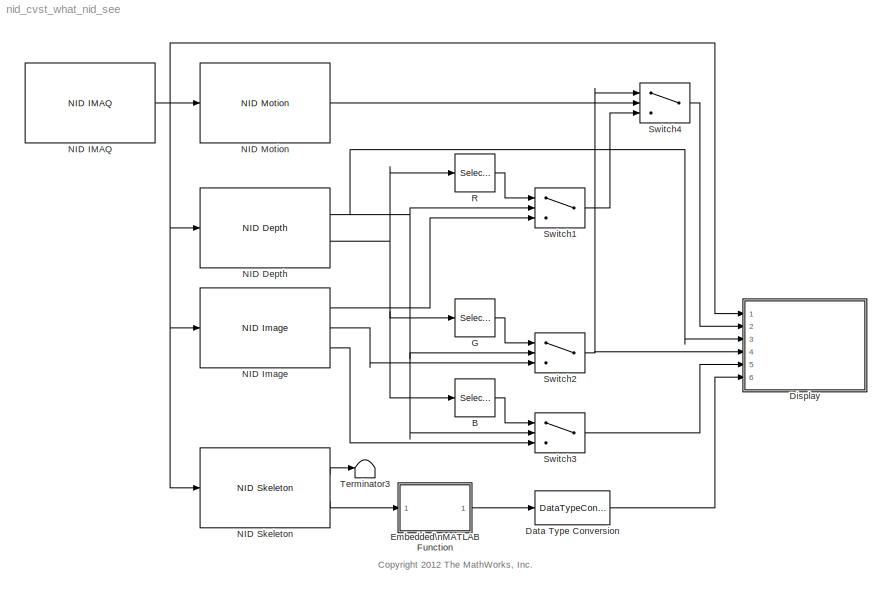
MODEL nid_cvst_what_nid_see
KIND model
BLOCK [Selector] B
  IndexOptions = Select all,Select all,Index vector (dialog)
  Indices = 1,2,3
  InputPortWidth = 3
  NumberOfDimensions = 3
  OutputSizes = 1,1,1
  Ports = [1, 1]
  SID = 141
BLOCK [DataTypeConversion] Data Type Conversion
  OutDataTypeStr = int32
  RndMeth = Floor
  SID = 149
  SaturateOnIntegerOverflow = off
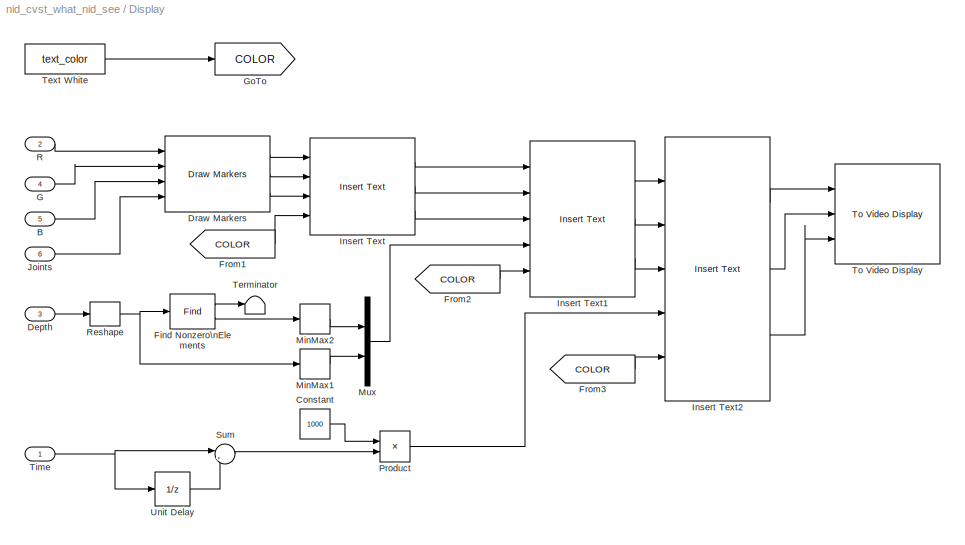
BLOCK [SubSystem] Display
  FunctionWithSeparateData = off
  MaskEnableString = on
  MaskHideContents = off
  MaskIconFrame = on
  MaskIconOpaque = on
  MaskIconRotate = none
  MaskIconUnits = autoscale
  MaskPortRotate = default
  MaskPromptString = Text Color (RGB)
  MaskStyleString = edit
  MaskToolTipString = on
  MaskTunableValueString = off
  MaskValueString = [0 0 0]
  MaskVariables = text_color=@1;
  MaskVisibilityString = on
  MinAlgLoopOccurrences = off
  Opaque = off
  Ports = [6]
  PropExecContextOutsideSubsystem = off
  RTWSystemCode = Auto
  RequestExecContextInheritance = off
  SID = 151
BLOCK [Inport] Display/B
  IconDisplay = Port number
  Port = 5
  SID = 154
BLOCK [Constant] Display/Constant
  SID = 176
  Value = 1000
BLOCK [Inport] Display/Depth
  IconDisplay = Port number
  Port = 3
  SID = 158
BLOCK [Reference] Display/Draw Markers  REF=viptextngfix/Draw Markers
  DialogController = vipDDGCreate
  DialogControllerArgs = DataTag0
  LockScale = off
  Ports = [4, 3]
  SID = 146
  SourceBlock = viptextngfix/Draw Markers
  SourceType = Draw Markers
  accumFracLength = 14
  accumMode = Same as product output
  accumWordLength = 32
  antialiasing = on
  color = [255 0 0]
  display = User-specified value
  fill = on
  fillClrSource = Specify via dialog
  imagePorts = Separate color signals
  inType = Obsolete
  intensity = 200
  memoryFracLength = 14
  memoryMode = Specify word length
  memoryWordLength = 16
  opacity = 0.5
  overflowMode = off
  prodOutputFracLength = 14
  prodOutputMode = Binary point scaling
  prodOutputWordLength = 32
  roundingMode = Floor
  shape = Circle
  size = 5
  viewport = Entire image
BLOCK [Find] Display/Find Nonzero\nElements
  IndexMode = Zero-based
  IndexOutputFormat = Linear indices
  NumberOfInputDimensions = 3
  Ports = [1, 2]
  SID = 168
  ShowOutputForNonzeroInputValues = on
BLOCK [From] Display/From1
  GotoTag = COLOR
  SID = 185
BLOCK [From] Display/From2
  GotoTag = COLOR
  SID = 186
BLOCK [From] Display/From3
  GotoTag = COLOR
  SID = 187
BLOCK [Inport] Display/G
  IconDisplay = Port number
  Port = 4
  SID = 153
BLOCK [Goto] Display/GoTo
  GotoTag = COLOR
  SID = 183
  TagVisibility = local
BLOCK [Reference] Display/Insert Text  REF=viptextngfix/Insert Text
  DialogController = vipDDGCreate
  DialogControllerArgs = DataTag1
  Ports = [4, 3]
  SID = 150
  SourceBlock = viptextngfix/Insert Text
  SourceType = Insert Text
  antiAliased = on
  blockFontSize = 16
  dummyVar1 = 0
  dummyVar2 = 0
  dummyVar3 = 0
  dummyVar4 = 0
  fontFace = Arial
  getTextColorFrom = Input port
  getTextIntensityFrom = Specify via dialog
  getTextLocFrom = Specify via dialog
  getTextOpacityFrom = Specify via dialog
  imagePorts = Separate color signals
  inputType = Obsolete
  isInputTransposed = off
  textColor = [0 0 0]
  textIntensity = 0
  textLoc = [0 0]
  textOpacity = 1.0
  theText = 'RGB camera + Depth (Green) + Motion (Yellow) + Skeleton Joints(Red)'
BLOCK [Reference] Display/Insert Text1  REF=viptextngfix/Insert Text
  DialogController = vipDDGCreate
  DialogControllerArgs = DataTag2
  Ports = [5, 3]
  SID = 170
  SourceBlock = viptextngfix/Insert Text
  SourceType = Insert Text
  antiAliased = on
  blockFontSize = 16
  dummyVar1 = 0
  dummyVar2 = 0
  dummyVar3 = 0
  dummyVar4 = 0
  fontFace = Arial
  getTextColorFrom = Input port
  getTextIntensityFrom = Specify via dialog
  getTextLocFrom = Specify via dialog
  getTextOpacityFrom = Specify via dialog
  imagePorts = Separate color signals
  inputType = Obsolete
  isInputTransposed = off
  textColor = [0 0 0]
  textIntensity = 0
  textLoc = [20 0]
  textOpacity = 1.0
  theText = 'Near: %4.2f[m] Far: %4.2f[m]'
BLOCK [Reference] Display/Insert Text2  REF=viptextngfix/Insert Text
  DialogController = vipDDGCreate
  DialogControllerArgs = DataTag3
  Ports = [5, 3]
  SID = 178
  SourceBlock = viptextngfix/Insert Text
  SourceType = Insert Text
  antiAliased = on
  blockFontSize = 16
  dummyVar1 = 0
  dummyVar2 = 0
  dummyVar3 = 0
  dummyVar4 = 0
  fontFace = Arial
  getTextColorFrom = Input port
  getTextIntensityFrom = Specify via dialog
  getTextLocFrom = Specify via dialog
  getTextOpacityFrom = Specify via dialog
  imagePorts = Separate color signals
  inputType = Obsolete
  isInputTransposed = off
  textColor = [0 0 0]
  textIntensity = 0
  textLoc = [40 0]
  textOpacity = 1.0
  theText = '%2.0f [FPS]'
BLOCK [Inport] Display/Joints
  IconDisplay = Port number
  Port = 6
  SID = 155
BLOCK [MinMax] Display/MinMax1
  Function = max
  InputSameDT = off
  Ports = [1, 1]
  SID = 159
  SaturateOnIntegerOverflow = off
BLOCK [MinMax] Display/MinMax2
  Function = min
  InputSameDT = off
  Ports = [1, 1]
  SID = 161
  SaturateOnIntegerOverflow = off
BLOCK [Mux] Display/Mux
  DisplayOption = bar
  Inputs = 2
  Ports = [2, 1]
  SID = 163
BLOCK [Product] Display/Product
  InputSameDT = off
  Inputs = */
  OutDataTypeStr = Inherit: Inherit via internal rule
  Ports = [2, 1]
  SID = 177
  SaturateOnIntegerOverflow = off
BLOCK [Inport] Display/R
  IconDisplay = Port number
  Port = 2
  SID = 152
BLOCK [Reshape] Display/Reshape
  Ports = [1, 1]
  SID = 160
BLOCK [Sum] Display/Sum
  IconShape = round
  InputSameDT = off
  Inputs = |+-
  OutDataTypeStr = Inherit: Inherit via internal rule
  Ports = [2, 1]
  SID = 175
  SaturateOnIntegerOverflow = off
BLOCK [Terminator] Display/Terminator
  SID = 169
BLOCK [Constant] Display/Text White
  OutDataTypeStr = uint8
  SID = 180
  Value = text_color
BLOCK [Inport] Display/Time
  IconDisplay = Port number
  SID = 171
BLOCK [Reference] Display/To Video Display  REF=vipsnks/To Video Display
  DialogControllerArgs = DataTag4
  OutputDevice = On-screen video monitor
  Ports = [3]
  SID = 123
  SourceBlock = vipsnks/To Video Display
  SourceType = To Video Display
  dataOrg = Column-major
  fullScreen = off
  imagePorts = Separate color signals
  inputType = Obsolete
  isWindowOpen = on
  openAtMdlStart = on
  saveWindowSize = off
  videoWindowHeight = 480
  videoWindowWidth = 640
  videoWindowX = 105
  videoWindowY = 22
BLOCK [UnitDelay] Display/Unit Delay
  InputProcessing = Elements as channels (sample based)
  SID = 174
  SampleTime = -1
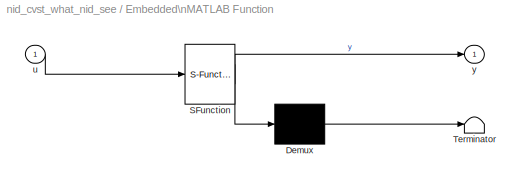
BLOCK [SubSystem] Embedded\nMATLAB Function
  FunctionWithSeparateData = off
  MaskDescription = Embedded MATLAB block
  MaskDisplay = disp('fcn');
  MaskHideContents = off
  MaskIconFrame = on
  MaskIconOpaque = off
  MaskIconRotate = none
  MaskIconUnits = autoscale
  MaskPortRotate = default
  MaskSelfModifiable = on
  MaskType = Stateflow
  MinAlgLoopOccurrences = off
  Opaque = off
  PermitHierarchicalResolution = ExplicitOnly
  Ports = [1, 1]
  PropExecContextOutsideSubsystem = off
  RTWSystemCode = Auto
  RequestExecContextInheritance = off
  SID = 148
  TreatAsAtomicUnit = on
BLOCK [Demux] Embedded\nMATLAB Function/ Demux 
  Outputs = 1
  Ports = [1, 1]
  SID = 148::15
BLOCK [S-Function] Embedded\nMATLAB Function/ SFunction 
  EnableBusSupport = on
  FunctionName = sf_sfun
  PortCounts = [1 2]
  Ports = [1, 2]
  SID = 148::14
  Tag = Stateflow S-Function nid_cvst_what_nid_see 2
BLOCK [Terminator] Embedded\nMATLAB Function/ Terminator 
  SID = 148::17
BLOCK [Inport] Embedded\nMATLAB Function/u
  IconDisplay = Port number
  SID = 148::1
BLOCK [Outport] Embedded\nMATLAB Function/y
  IconDisplay = Port number
  SID = 148::5
BLOCK [Selector] G
  IndexOptions = Select all,Select all,Index vector (dialog)
  Indices = 1,2,2
  InputPortWidth = 3
  NumberOfDimensions = 3
  OutputSizes = 1,1,1
  Ports = [1, 1]
  SID = 140
BLOCK [Reference] NID Depth  REF=nid_lib/NID Depth
  Ports = [1, 2]
  SID = 117
  SourceBlock = nid_lib/NID Depth
  SourceType = NID Depth
  conv_XYZ_RW = off
  depthOutput = Depth
  viewer = on
BLOCK [Reference] NID IMAQ  REF=nid_lib/NID IMAQ
  Ports = [0, 1]
  SID = 84
  SourceBlock = nid_lib/NID IMAQ
  SourceType = NID IMAQ
  angle = 0
  angle_read = off
  imaq_depth = on
  imaq_image = on
  imaq_ir = off
  imaq_motion = on
  imaq_sample_time = 1/30
  imaq_skeleton = on
  mirror_image = off
  near_mode = off
  needPsiPose = off
  res_fps = VGA (640x480): 30 FPS
  view_point = on
BLOCK [Reference] NID Image  REF=nid_lib/NID Image
  Ports = [1, 3]
  SID = 120
  SourceBlock = nid_lib/NID Image
  SourceType = NID Image
  imageOutput = R/G/B
BLOCK [Reference] NID Motion  REF=nid_lib/NID Motion
  Ports = [1, 1]
  SID = 130
  SourceBlock = nid_lib/NID Motion
  SourceType = NID Motion
  viewer = off
BLOCK [Reference] NID Skeleton  REF=nid_lib/NID Skeleton
  Ports = [1, 2]
  SID = 145
  SourceBlock = nid_lib/NID Skeleton
  SourceType = NID Skeleton
  conv_XYZ_RW = off
  num_of_skeleton_tracking = 1
  viewer = off
BLOCK [Selector] R
  IndexOptions = Select all,Select all,Index vector (dialog)
  Indices = 1,2,1
  InputPortWidth = 3
  NumberOfDimensions = 3
  OutputSizes = 1,1,1
  Ports = [1, 1]
  SID = 139
BLOCK [Switch] Switch1
  Criteria = u2 > Threshold
  InputSameDT = off
  SID = 134
  SaturateOnIntegerOverflow = off
BLOCK [Switch] Switch2
  Criteria = u2 > Threshold
  InputSameDT = off
  SID = 142
  SaturateOnIntegerOverflow = off
BLOCK [Switch] Switch3
  Criteria = u2 > Threshold
  InputSameDT = off
  SID = 143
  SaturateOnIntegerOverflow = off
BLOCK [Switch] Switch4
  Criteria = u2 > Threshold
  InputSameDT = off
  SID = 144
  SaturateOnIntegerOverflow = off
BLOCK [Terminator] Terminator3
  SID = 147
ANNOTATION (root): <copyright redacted>
LINE B:1 -> Switch3:1
LINE Data Type Conversion:1 -> Display:6
LINE Display/B:1 -> Display/Draw Markers:3
LINE Display/Constant:1 -> Display/Product:1
LINE Display/Depth:1 -> Display/Reshape:1
LINE Display/Draw Markers:1 -> Display/Insert Text:1
LINE Display/Draw Markers:2 -> Display/Insert Text:2
LINE Display/Draw Markers:3 -> Display/Insert Text:3
LINE Display/Find Nonzero\nElements:1 -> Display/Terminator:1
LINE Display/Find Nonzero\nElements:2 -> Display/MinMax2:1
LINE Display/From1:1 -> Display/Insert Text:4
LINE Display/From2:1 -> Display/Insert Text1:5
LINE Display/From3:1 -> Display/Insert Text2:5
LINE Display/G:1 -> Display/Draw Markers:2
LINE Display/Insert Text1:1 -> Display/Insert Text2:1
LINE Display/Insert Text1:2 -> Display/Insert Text2:2
LINE Display/Insert Text1:3 -> Display/Insert Text2:3
LINE Display/Insert Text2:1 -> Display/To Video Display:1
LINE Display/Insert Text2:2 -> Display/To Video Display:2
LINE Display/Insert Text2:3 -> Display/To Video Display:3
LINE Display/Insert Text:1 -> Display/Insert Text1:1
LINE Display/Insert Text:2 -> Display/Insert Text1:2
LINE Display/Insert Text:3 -> Display/Insert Text1:3
LINE Display/Joints:1 -> Display/Draw Markers:4
LINE Display/MinMax1:1 -> Display/Mux:2
LINE Display/MinMax2:1 -> Display/Mux:1
LINE Display/Mux:1 -> Display/Insert Text1:4
LINE Display/Product:1 -> Display/Insert Text2:4
LINE Display/R:1 -> Display/Draw Markers:1
NET Display/Reshape:1 -> Display/Find Nonzero\nElements:1, Display/MinMax1:1
LINE Display/Sum:1 -> Display/Product:2
LINE Display/Text White:1 -> Display/GoTo:1
NET Display/Time:1 -> Display/Sum:1, Display/Unit Delay:1
LINE Display/Unit Delay:1 -> Display/Sum:2
LINE Embedded\nMATLAB Function/ Demux :1 -> Embedded\nMATLAB Function/ Terminator :1
LINE Embedded\nMATLAB Function/ SFunction :1 -> Embedded\nMATLAB Function/ Demux :1
LINE Embedded\nMATLAB Function/ SFunction :2 -> Embedded\nMATLAB Function/y:1
LINE Embedded\nMATLAB Function/u:1 -> Embedded\nMATLAB Function/ SFunction :1
LINE Embedded\nMATLAB Function:1 -> Data Type Conversion:1
LINE G:1 -> Switch2:1
NET NID Depth:1 -> Display:3, Switch1:2, Switch2:2, Switch3:2
NET NID Depth:2 -> B:1, G:1, R:1
NET NID IMAQ:1 -> Display:1, NID Depth:1, NID Image:1, NID Motion:1, NID Skeleton:1
LINE NID Image:1 -> Switch1:3
LINE NID Image:2 -> Switch2:3
LINE NID Image:3 -> Switch3:3
LINE NID Motion:1 -> Switch4:2
LINE NID Skeleton:1 -> Terminator3:1
LINE NID Skeleton:2 -> Embedded\nMATLAB Function:1
LINE R:1 -> Switch1:1
LINE Switch1:1 -> Switch4:3
NET Switch2:1 -> Display:4, Switch4:1
LINE Switch3:1 -> Display:5
LINE Switch4:1 -> Display:2
note: NET lines group one-source signal fan-out (src -> all destinations, sorted); 1:1 wires keep LINE
CHART Embedded\nMATLAB Function states=1 transitions=1
  STATE_LABEL 'eML_blk_kernel()'
